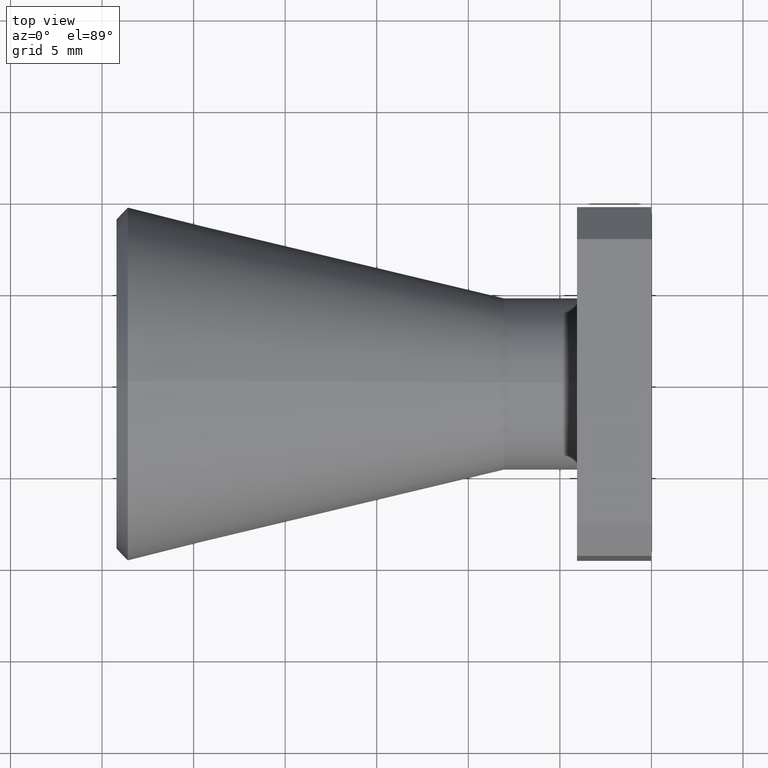
[diagram: clean part render]
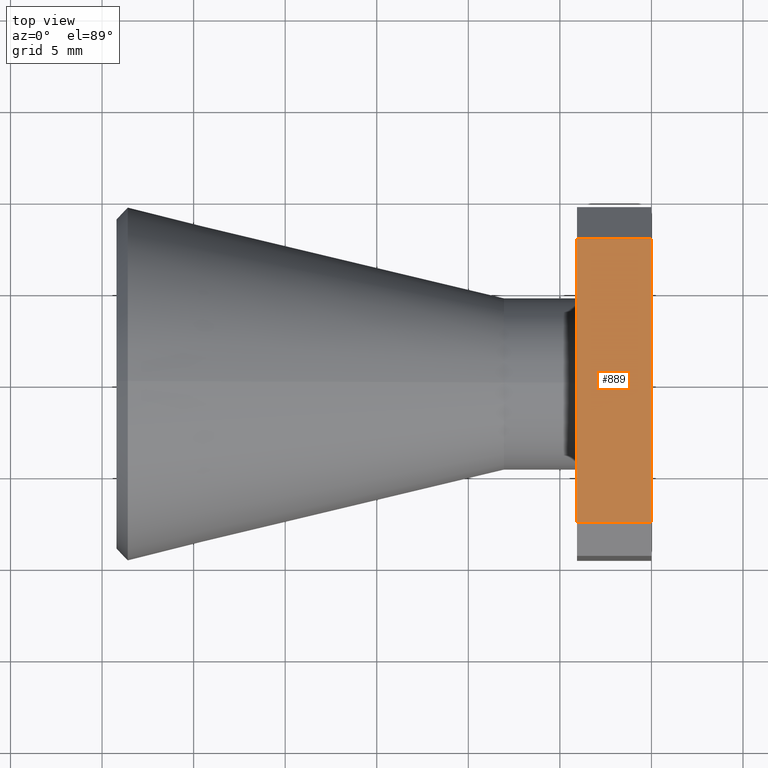
[diagram: same view with one face highlighted and labeled with its STEP entity id]
A machine part, top view. The second image highlights one B-rep face of the part: STEP entity #889.
In plain terms, the highlighted planar face has unit normal (0, 0, 1).
Its self-contained STEP definition (entity closure, byte-faithful):
#58 = CARTESIAN_POINT ( 'NONE',  ( -0.1600000000000000000, -0.3049999999999999400, 0.3750000000000001100 ) ) ;
#63 = DIRECTION ( 'NONE',  ( -0.0000000000000000000, -1.000000000000000000, -0.0000000000000000000 ) ) ;
#79 = DIRECTION ( 'NONE',  ( -1.000000000000000000, 0.0000000000000000000, 0.0000000000000000000 ) ) ;
#109 = PLANE ( 'NONE',  #381 ) ;
#127 = VERTEX_POINT ( 'NONE', #848 ) ;
#130 = CARTESIAN_POINT ( 'NONE',  ( -0.1600000000000000000, -0.3750000000000000600, 0.3750000000000001100 ) ) ;
#172 = CARTESIAN_POINT ( 'NONE',  ( 0.0000000000000000000, 0.3049999999999993800, 0.3750000000000001100 ) ) ;
#187 = EDGE_LOOP ( 'NONE', ( #861, #406, #325, #486 ) ) ;
#246 = DIRECTION ( 'NONE',  ( 0.0000000000000000000, 0.0000000000000000000, 1.000000000000000000 ) ) ;
#258 = CARTESIAN_POINT ( 'NONE',  ( 0.0000000000000000000, -0.3750000000000000600, 0.3750000000000001100 ) ) ;
#260 = VECTOR ( 'NONE', #79, 39.37007874015748100 ) ;
#286 = LINE ( 'NONE', #130, #720 ) ;
#325 = ORIENTED_EDGE ( 'NONE', *, *, #558, .F. ) ;
#344 = CARTESIAN_POINT ( 'NONE',  ( -0.1600000000000000000, 0.3049999999999996600, 0.3750000000000001100 ) ) ;
#380 = VERTEX_POINT ( 'NONE', #172 ) ;
#381 = AXIS2_PLACEMENT_3D ( 'NONE', #675, #246, #809 ) ;
#406 = ORIENTED_EDGE ( 'NONE', *, *, #587, .T. ) ;
#410 = CARTESIAN_POINT ( 'NONE',  ( -0.1600000000000000000, -0.3049999999999999400, 0.3750000000000001100 ) ) ;
#459 = VECTOR ( 'NONE', #469, 39.37007874015748100 ) ;
#469 = DIRECTION ( 'NONE',  ( 1.000000000000000000, 0.0000000000000000000, 0.0000000000000000000 ) ) ;
#486 = ORIENTED_EDGE ( 'NONE', *, *, #659, .T. ) ;
#491 = EDGE_CURVE ( 'NONE', #844, #611, #286, .T. ) ;
#548 = LINE ( 'NONE', #58, #459 ) ;
#558 = EDGE_CURVE ( 'NONE', #380, #127, #639, .T. ) ;
#577 = CARTESIAN_POINT ( 'NONE',  ( -0.1600000000000000000, 0.3049999999999993800, 0.3750000000000001100 ) ) ;
#587 = EDGE_CURVE ( 'NONE', #611, #127, #548, .T. ) ;
#611 = VERTEX_POINT ( 'NONE', #410 ) ;
#617 = DIRECTION ( 'NONE',  ( -0.0000000000000000000, -1.000000000000000000, -0.0000000000000000000 ) ) ;
#639 = LINE ( 'NONE', #258, #649 ) ;
#649 = VECTOR ( 'NONE', #63, 39.37007874015748100 ) ;
#659 = EDGE_CURVE ( 'NONE', #380, #844, #810, .T. ) ;
#675 = CARTESIAN_POINT ( 'NONE',  ( -0.1600000000000000000, -0.3750000000000000600, 0.3750000000000001100 ) ) ;
#720 = VECTOR ( 'NONE', #617, 39.37007874015748100 ) ;
#788 = FACE_OUTER_BOUND ( 'NONE', #187, .T. ) ;
#809 = DIRECTION ( 'NONE',  ( 1.000000000000000000, 0.0000000000000000000, -0.0000000000000000000 ) ) ;
#810 = LINE ( 'NONE', #344, #260 ) ;
#844 = VERTEX_POINT ( 'NONE', #577 ) ;
#848 = CARTESIAN_POINT ( 'NONE',  ( 0.0000000000000000000, -0.3049999999999999400, 0.3750000000000001100 ) ) ;
#861 = ORIENTED_EDGE ( 'NONE', *, *, #491, .T. ) ;
#889 = ADVANCED_FACE ( 'NONE', ( #788 ), #109, .T. ) ;